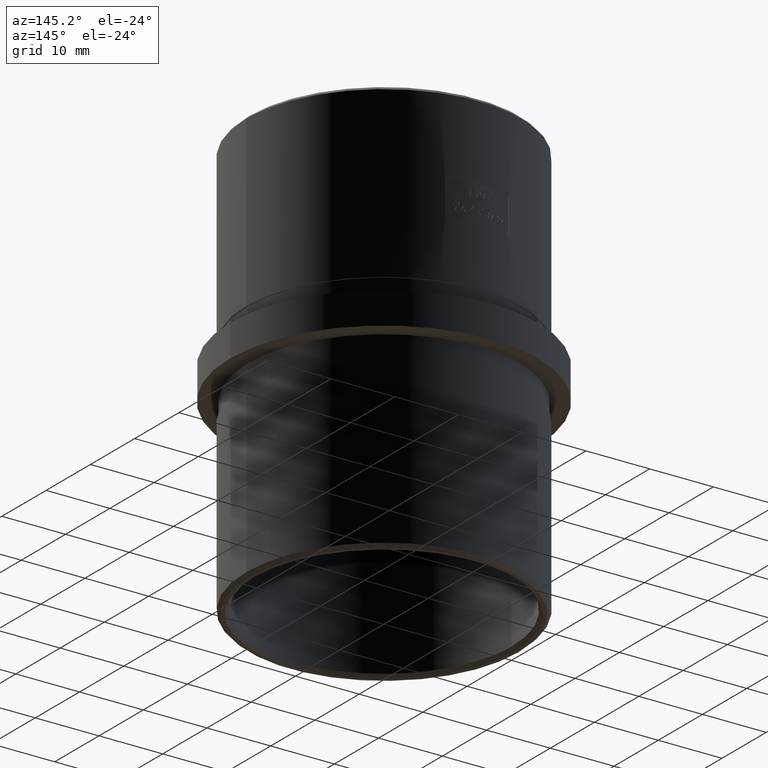
[diagram: clean part render]
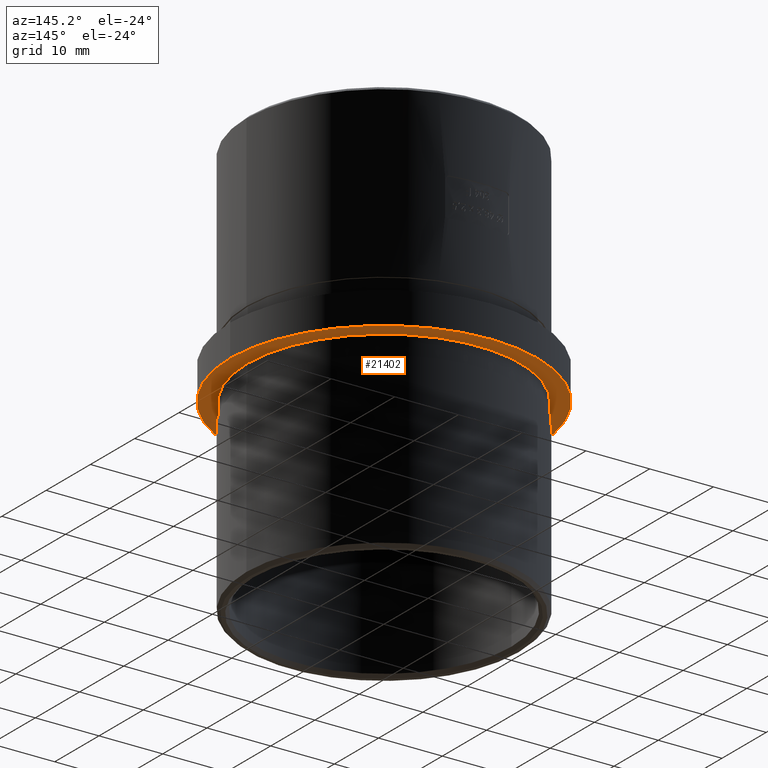
[diagram: same view with one face highlighted and labeled with its STEP entity id]
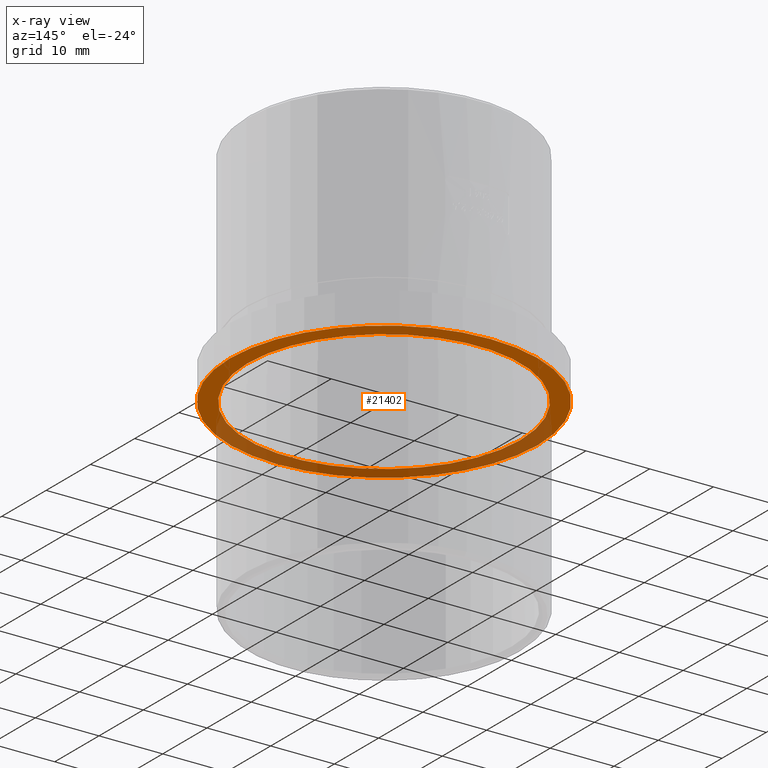
[diagram: x-ray of the same camera — body ghosted, the highlighted face saturated]
A machine part, auxiliary view. The second image highlights one B-rep face of the part: STEP entity #21402.
The next image is the same camera in x-ray: the body ghosted, the highlighted face saturated — about 39% of this face is hidden behind the body in this view.
In plain terms, the highlighted planar face has unit normal (0, 0, -1).
Its self-contained STEP definition (entity closure, byte-faithful):
#163 = PLANE ( 'NONE',  #18268 ) ;
#1272 = CARTESIAN_POINT ( 'NONE',  ( -21.39999999999999900, 0.0000000000000000000, -2.500000000000000000 ) ) ;
#3375 = EDGE_CURVE ( 'NONE', #16409, #14694, #15714, .T. ) ;
#4910 = AXIS2_PLACEMENT_3D ( 'NONE', #22667, #7849, #20526 ) ;
#6626 = DIRECTION ( 'NONE',  ( 1.000000000000000000, 0.0000000000000000000, 0.0000000000000000000 ) ) ;
#6707 = DIRECTION ( 'NONE',  ( -0.0000000000000000000, -0.0000000000000000000, 1.000000000000000000 ) ) ;
#7068 = AXIS2_PLACEMENT_3D ( 'NONE', #22800, #6707, #6626 ) ;
#7304 = FACE_BOUND ( 'NONE', #10676, .T. ) ;
#7849 = DIRECTION ( 'NONE',  ( -0.0000000000000000000, -0.0000000000000000000, 1.000000000000000000 ) ) ;
#10344 = EDGE_CURVE ( 'NONE', #14694, #16409, #17640, .T. ) ;
#10489 = VERTEX_POINT ( 'NONE', #1272 ) ;
#10676 = EDGE_LOOP ( 'NONE', ( #23506, #21592 ) ) ;
#10704 = EDGE_LOOP ( 'NONE', ( #19811, #16789 ) ) ;
#12139 = CARTESIAN_POINT ( 'NONE',  ( 24.15000000000000600, 2.957522019940858700E-015, -2.500000000000000000 ) ) ;
#12848 = EDGE_CURVE ( 'NONE', #10489, #14807, #22139, .T. ) ;
#13247 = AXIS2_PLACEMENT_3D ( 'NONE', #17127, #18954, #15086 ) ;
#13267 = CARTESIAN_POINT ( 'NONE',  ( -24.15000000000000600, 0.0000000000000000000, -2.500000000000000000 ) ) ;
#14181 = DIRECTION ( 'NONE',  ( -0.0000000000000000000, -0.0000000000000000000, 1.000000000000000000 ) ) ;
#14694 = VERTEX_POINT ( 'NONE', #12139 ) ;
#14807 = VERTEX_POINT ( 'NONE', #19686 ) ;
#15086 = DIRECTION ( 'NONE',  ( 1.000000000000000000, 0.0000000000000000000, 0.0000000000000000000 ) ) ;
#15614 = CIRCLE ( 'NONE', #19222, 21.39999999999999900 ) ;
#15714 = CIRCLE ( 'NONE', #7068, 24.15000000000000600 ) ;
#16255 = DIRECTION ( 'NONE',  ( 0.0000000000000000000, 0.0000000000000000000, -1.000000000000000000 ) ) ;
#16334 = DIRECTION ( 'NONE',  ( 1.000000000000000000, 0.0000000000000000000, 0.0000000000000000000 ) ) ;
#16409 = VERTEX_POINT ( 'NONE', #13267 ) ;
#16789 = ORIENTED_EDGE ( 'NONE', *, *, #10344, .F. ) ;
#17127 = CARTESIAN_POINT ( 'NONE',  ( 0.0000000000000000000, 0.0000000000000000000, -2.500000000000000000 ) ) ;
#17152 = EDGE_CURVE ( 'NONE', #14807, #10489, #15614, .T. ) ;
#17398 = CARTESIAN_POINT ( 'NONE',  ( 0.0000000000000000000, 0.0000000000000000000, -2.500000000000000000 ) ) ;
#17640 = CIRCLE ( 'NONE', #4910, 24.15000000000000600 ) ;
#18268 = AXIS2_PLACEMENT_3D ( 'NONE', #18303, #16255, #16334 ) ;
#18303 = CARTESIAN_POINT ( 'NONE',  ( 0.0000000000000000000, 0.0000000000000000000, -2.500000000000000000 ) ) ;
#18873 = FACE_OUTER_BOUND ( 'NONE', #10704, .T. ) ;
#18954 = DIRECTION ( 'NONE',  ( -0.0000000000000000000, -0.0000000000000000000, 1.000000000000000000 ) ) ;
#19222 = AXIS2_PLACEMENT_3D ( 'NONE', #17398, #14181, #19645 ) ;
#19645 = DIRECTION ( 'NONE',  ( 1.000000000000000000, 0.0000000000000000000, 0.0000000000000000000 ) ) ;
#19686 = CARTESIAN_POINT ( 'NONE',  ( 21.39999999999999900, -2.620744150175335900E-015, -2.500000000000000000 ) ) ;
#19811 = ORIENTED_EDGE ( 'NONE', *, *, #3375, .F. ) ;
#20526 = DIRECTION ( 'NONE',  ( 1.000000000000000000, 0.0000000000000000000, 0.0000000000000000000 ) ) ;
#21402 = ADVANCED_FACE ( 'NONE', ( #7304, #18873 ), #163, .T. ) ;
#21592 = ORIENTED_EDGE ( 'NONE', *, *, #17152, .T. ) ;
#22139 = CIRCLE ( 'NONE', #13247, 21.39999999999999900 ) ;
#22667 = CARTESIAN_POINT ( 'NONE',  ( 0.0000000000000000000, 0.0000000000000000000, -2.500000000000000000 ) ) ;
#22800 = CARTESIAN_POINT ( 'NONE',  ( 0.0000000000000000000, 0.0000000000000000000, -2.500000000000000000 ) ) ;
#23506 = ORIENTED_EDGE ( 'NONE', *, *, #12848, .T. ) ;